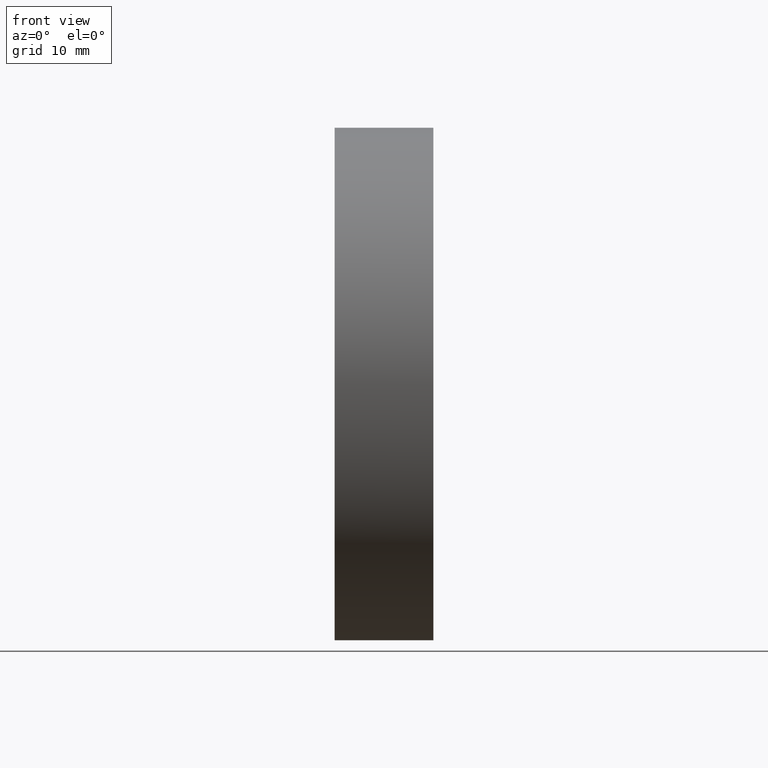
[diagram: clean part render]
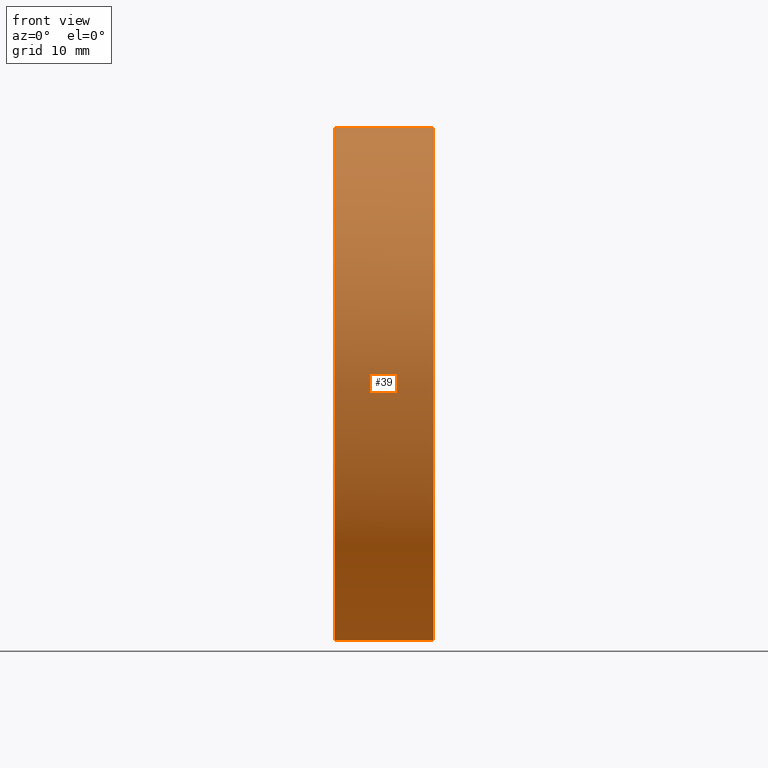
[diagram: same view with one face highlighted and labeled with its STEP entity id]
A machine part, front view. The second image highlights one B-rep face of the part: STEP entity #39.
In plain terms, the highlighted cylindrical surface (partial cylindrical patch) has radius 25 mm, axis along (-1, -0, -0).
Its self-contained STEP definition (entity closure, byte-faithful):
#4 = LINE ( 'NONE', #80, #62 ) ;
#7 = CARTESIAN_POINT ( 'NONE',  ( 239.8107021831322600, 138.7560422467448700, 0.0000000000000000000 ) ) ;
#15 = ORIENTED_EDGE ( 'NONE', *, *, #67, .F. ) ;
#21 = CARTESIAN_POINT ( 'NONE',  ( 239.8107021831322600, 113.7560422467455400, -3.061616997868293900E-015 ) ) ;
#23 = VERTEX_POINT ( 'NONE', #147 ) ;
#29 = VECTOR ( 'NONE', #168, 1000.000000000000000 ) ;
#32 = EDGE_CURVE ( 'NONE', #180, #164, #4, .T. ) ;
#36 = LINE ( 'NONE', #149, #29 ) ;
#37 = FACE_OUTER_BOUND ( 'NONE', #146, .T. ) ;
#39 = ADVANCED_FACE ( 'NONE', ( #37 ), #185, .T. ) ;
#43 = DIRECTION ( 'NONE',  ( -1.000000000000000000, -0.0000000000000000000, -0.0000000000000000000 ) ) ;
#49 = AXIS2_PLACEMENT_3D ( 'NONE', #57, #154, #170 ) ;
#54 = CARTESIAN_POINT ( 'NONE',  ( 217.9702860043302100, 138.7560422467448700, 0.0000000000000000000 ) ) ;
#57 = CARTESIAN_POINT ( 'NONE',  ( 239.8107021831322600, 138.7560422467448700, 0.0000000000000000000 ) ) ;
#58 = DIRECTION ( 'NONE',  ( -1.000000000000000000, -0.0000000000000000000, -0.0000000000000000000 ) ) ;
#62 = VECTOR ( 'NONE', #106, 1000.000000000000000 ) ;
#65 = VERTEX_POINT ( 'NONE', #21 ) ;
#67 = EDGE_CURVE ( 'NONE', #137, #23, #36, .T. ) ;
#69 = DIRECTION ( 'NONE',  ( -1.000000000000000000, -0.0000000000000000000, -0.0000000000000000000 ) ) ;
#70 = CARTESIAN_POINT ( 'NONE',  ( 239.8107021831322600, 138.7560422467448700, -24.99999999999999300 ) ) ;
#72 = EDGE_CURVE ( 'NONE', #23, #164, #153, .T. ) ;
#73 = DIRECTION ( 'NONE',  ( 0.0000000000000000000, 0.0000000000000000000, 1.000000000000000000 ) ) ;
#80 = CARTESIAN_POINT ( 'NONE',  ( 217.9702860043302100, 138.7560422467448700, 24.99999999999999300 ) ) ;
#95 = EDGE_CURVE ( 'NONE', #65, #180, #145, .T. ) ;
#98 = CARTESIAN_POINT ( 'NONE',  ( 230.1853110698390300, 138.7560422467448700, 0.0000000000000000000 ) ) ;
#100 = ORIENTED_EDGE ( 'NONE', *, *, #32, .T. ) ;
#103 = ORIENTED_EDGE ( 'NONE', *, *, #72, .F. ) ;
#106 = DIRECTION ( 'NONE',  ( -1.000000000000000000, -0.0000000000000000000, -0.0000000000000000000 ) ) ;
#111 = CARTESIAN_POINT ( 'NONE',  ( 239.8107021831322600, 138.7560422467448700, 24.99999999999999300 ) ) ;
#114 = DIRECTION ( 'NONE',  ( 0.0000000000000000000, 0.0000000000000000000, 1.000000000000000000 ) ) ;
#121 = ORIENTED_EDGE ( 'NONE', *, *, #122, .T. ) ;
#122 = EDGE_CURVE ( 'NONE', #137, #65, #161, .T. ) ;
#132 = AXIS2_PLACEMENT_3D ( 'NONE', #54, #69, #167 ) ;
#137 = VERTEX_POINT ( 'NONE', #70 ) ;
#144 = AXIS2_PLACEMENT_3D ( 'NONE', #98, #58, #114 ) ;
#145 = CIRCLE ( 'NONE', #148, 24.99999999999999300 ) ;
#146 = EDGE_LOOP ( 'NONE', ( #15, #121, #150, #100, #103 ) ) ;
#147 = CARTESIAN_POINT ( 'NONE',  ( 230.1853110698390300, 138.7560422467448700, -24.99999999999999300 ) ) ;
#148 = AXIS2_PLACEMENT_3D ( 'NONE', #7, #43, #73 ) ;
#149 = CARTESIAN_POINT ( 'NONE',  ( 217.9702860043302100, 138.7560422467448700, -24.99999999999999300 ) ) ;
#150 = ORIENTED_EDGE ( 'NONE', *, *, #95, .T. ) ;
#153 = CIRCLE ( 'NONE', #144, 24.99999999999999300 ) ;
#154 = DIRECTION ( 'NONE',  ( -1.000000000000000000, -0.0000000000000000000, -0.0000000000000000000 ) ) ;
#161 = CIRCLE ( 'NONE', #49, 24.99999999999999300 ) ;
#164 = VERTEX_POINT ( 'NONE', #184 ) ;
#167 = DIRECTION ( 'NONE',  ( 0.0000000000000000000, 0.0000000000000000000, 1.000000000000000000 ) ) ;
#168 = DIRECTION ( 'NONE',  ( -1.000000000000000000, -0.0000000000000000000, -0.0000000000000000000 ) ) ;
#170 = DIRECTION ( 'NONE',  ( 0.0000000000000000000, 0.0000000000000000000, 1.000000000000000000 ) ) ;
#180 = VERTEX_POINT ( 'NONE', #111 ) ;
#184 = CARTESIAN_POINT ( 'NONE',  ( 230.1853110698390300, 138.7560422467448700, 24.99999999999999300 ) ) ;
#185 = CYLINDRICAL_SURFACE ( 'NONE', #132, 24.99999999999999300 ) ;